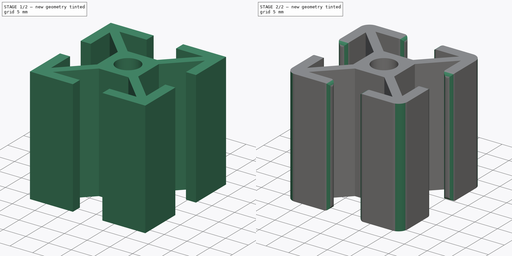
[diagram: build sequence overview — one tinted view per stage of 2, left to right]
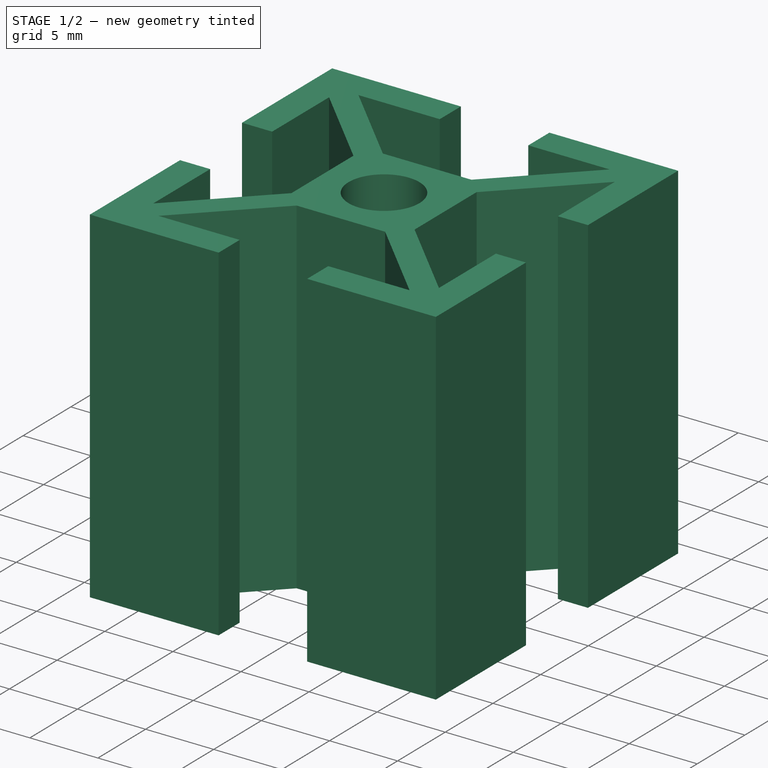
[diagram: stage 1 of 2 — iso view after this stage's code; geometry added in this stage tinted green]
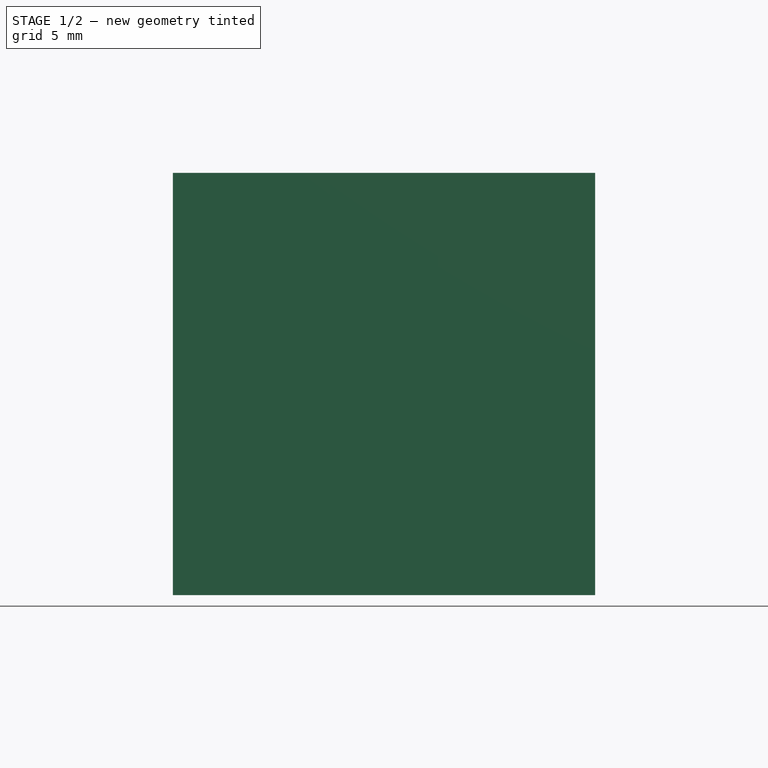
[diagram: stage 1 of 2 — front view after this stage's code; geometry added in this stage tinted green]
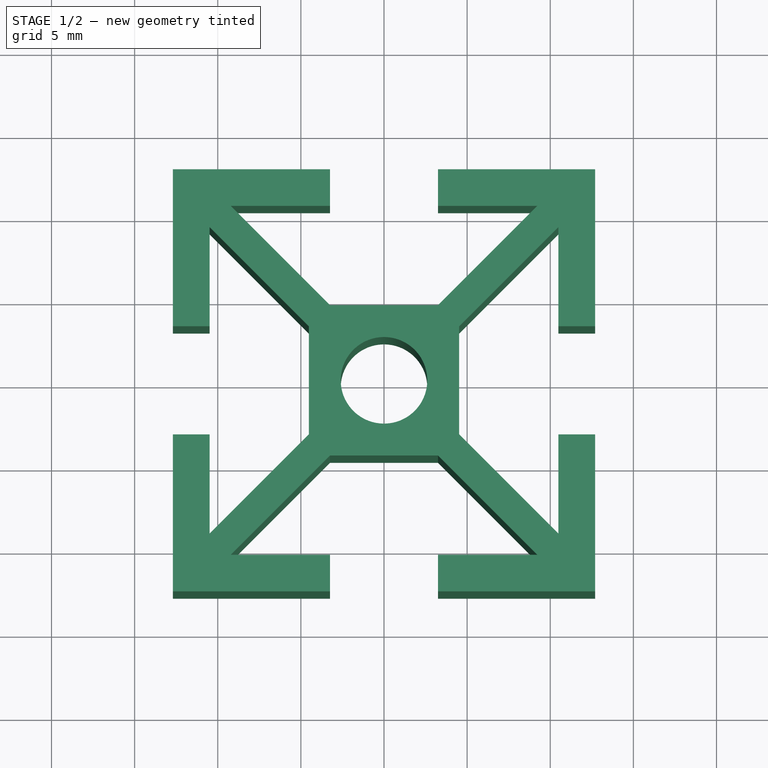
[diagram: stage 1 of 2 — top view after this stage's code; geometry added in this stage tinted green]
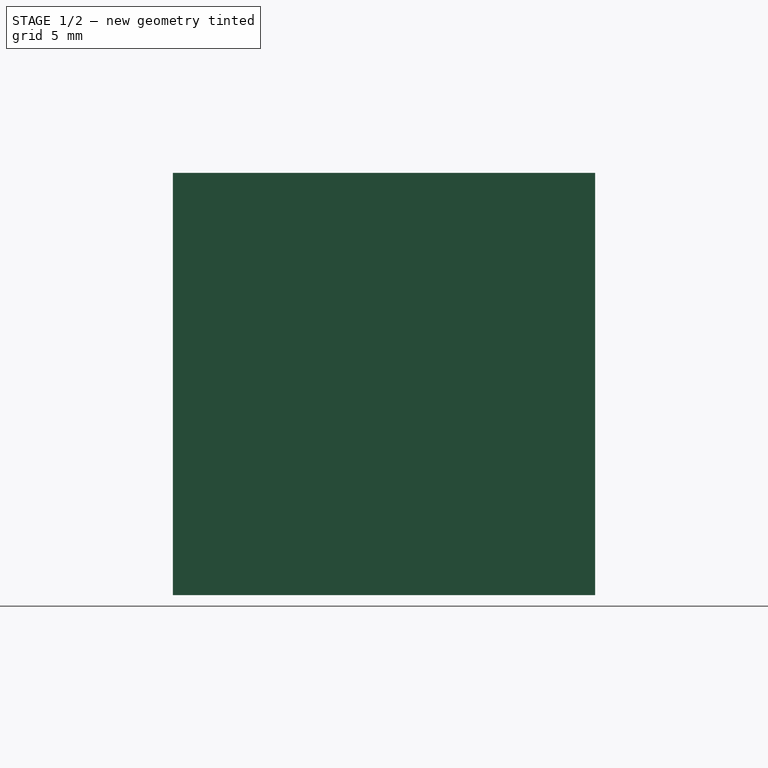
[diagram: stage 1 of 2 — right view after this stage's code; geometry added in this stage tinted green]
FCSTD DOCUMENT  (FreeCAD 2023.131R26244 +5365 (Git))
Label: 80-20
License: All rights reserved
LicenseURL: http://en.wikipedia.org/wiki/All_rights_reserved
objects: Sketcher::SketchObject×2, PartDesign::Fillet×2, Spreadsheet::Sheet×1, PartDesign::Pad×1, PartDesign::Pocket×1, PartDesign::Body×1
note: 17 computed .brp shape members not serialized (recipe doc carries the construction recipe); baked Part::Feature solids carry a one-line shape summary decoded from their .brp

FEATURE [Spreadsheet::Sheet] Spreadsheet  label="Parameters"
  PythonMode = false
  ShowCells = 0
  TreeRank = 1
  cells = A1=Units; B1=in; C1=in or cm; A2=Width; B2=1; A3=Height; B3=1; A4=Length; B4=1; A5=Through Hole Diameter; B5=0.205; A6=T-slot Wing Thickness; B6=0.08699999999999999; A7=T-slot Width; B7=0.256; A8=Inner Shaft Width; B8=0.356; A9=Inner Shaft Height; B9=0.356; A10=X-profile Shaft Thickness; B10=0.5; A12=Actual Width; B12(Width)==(B1 == <<cm>> ? 1 : 25.4) * B2; A13=Actual Height; B13(Height)==(B1 == <<cm>> ? 1 : 25.4) * B3; A14=Actual Length; B14(Length)==(B1 == <<cm>> ? 1 : 25.4) * B4; A15=Actual Through Hole Diameter; B15(Hole_Diameter)==(B1 == <<cm>> ? 1 : 25.4) * B5; A16=Actual T-slot Wing Thickness; B16(Wing_Thickness)==(B1 == <<cm>> ? 1 : 25.4) * B6; A17=Actual T-slot Width; B17(TSlot_Width)==(B1 == <<cm>> ? 1 : 25.4) * B7; A18=Actual Inner Shaft Width; B18(Inner_Width)==(B1 == <<cm>> ? 1 : 25.4) * B8; A19=Actual Inner Shaft Height; B19(Inner_Height)==(B1 == <<cm>> ? 1 : 25.4) * B9; A20=Actual X-profile Shaft Thickness; B20(XProfile_Shaft_Thickness)==(B1 == <<cm>> ? 1 : 25.4) * B10
FEATURE [Sketcher::SketchObject] Sketch  label="Rectangle Sketch"
  ArcFitTolerance = 1e-06
  AttachmentSupport = -> [XY_Plane]
  ExternalBSplineMaxDegree = 5
  ExternalBSplineTolerance = 0.0001
  FullyConstrained = true
  InternalTolerance = 1e-06
  InvalidShape = false
  MakeInternals = false
  MapMode = 5
  Support = -> [XY_Plane]
  TreeRank = 12
  ValidateShape = true
  expr: Constraints[10] = <<Parameters>>.Width
  expr: Constraints[11] = <<Parameters>>.Height
  expr: Constraints[12] = <<Parameters>>.Hole_Diameter
  sketch-geometry (6):
    g0: LineSegment StartX=12.7 StartY=-12.7 StartZ=0 EndX=12.7 EndY=12.7 EndZ=0
    g1: LineSegment StartX=12.7 StartY=12.7 StartZ=0 EndX=-12.7 EndY=12.7 EndZ=0
    g2: LineSegment StartX=-12.7 StartY=12.7 StartZ=0 EndX=-12.7 EndY=-12.7 EndZ=0
    g3: LineSegment StartX=-12.7 StartY=-12.7 StartZ=0 EndX=12.7 EndY=-12.7 EndZ=0
    g4: GeomPoint [constr] X=0 Y=0 Z=0
    g5: Circle CenterX=0 CenterY=0 CenterZ=0 NormalX=0 NormalY=0 NormalZ=1 AngleXU=0 Radius=2.6035
  constraints (14):
    c: Coincident(g0,g1)
    c: Coincident(g1,g2)
    c: Coincident(g2,g3)
    c: Coincident(g3,g0)
    c: Horizontal(g1)
    c: Horizontal(g3)
    c: Vertical(g0)
    c: Vertical(g2)
    c: Symmetric(g1,g0,g4)
    c: Coincident(g4,g-1)
    c: Distance(g1) = 25.4
    c: Distance(g0) = 25.4
    c: Diameter(g5) = 5.207
    c: Coincident(g5,g4)
FEATURE [PartDesign::Pad] Pad  label="Rectangle"
  AddSubType = 0
  AlongSketchNormal = false
  AutoTaperInnerAngle = true
  CheckUpToFaceLimits = true
  ClaimChildren = false
  Direction = (0,0,1)
  Fit = 0
  FitJoin = 0
  InnerFit = 0
  InnerFitJoin = 0
  InvalidShape = false
  Length = 25.4
  Length2 = 100
  Linearize = true
  NewSolid = false
  Profile = -> Sketch
  Suppress = false
  TaperInnerAngle = 0
  TaperInnerAngleRev = 0
  TreeRank = 13
  Type = 0
  ValidateShape = true
  _ProfileBasedVersion = 1
  expr: Length = <<Parameters>>.Height
FEATURE [Sketcher::SketchObject] Sketch001  label="T-Slots Sketch"
  ArcFitTolerance = 1e-06
  AttachmentSupport = -> [Pad]
  ExternalBSplineMaxDegree = 5
  ExternalBSplineTolerance = 0.0001
  FullyConstrained = true
  InternalTolerance = 1e-06
  InvalidShape = false
  MakeInternals = false
  MapMode = 5
  Placement = pos=(0,0,25.4) rot=(0,0,1;0rad)
  Support = -> [Pad]
  TreeRank = 14
  ValidateShape = true
  expr: Constraints[10] = <<Parameters>>.Width
  expr: Constraints[11] = <<Parameters>>.Height
  expr: Constraints[14] = <<Parameters>>.TSlot_Width
  expr: Constraints[20] = <<Parameters>>.Wing_Thickness
  expr: Constraints[31] = <<Parameters>>.Inner_Width
  expr: Constraints[32] = <<Parameters>>.Inner_Height
  expr: Constraints[35] = <<Parameters>>.TSlot_Width
  expr: Constraints[88] = <<Parameters>>.Wing_Thickness
  sketch-geometry (42):
    g0: LineSegment [constr] StartX=12.7 StartY=-12.7 StartZ=0 EndX=12.7 EndY=12.7 EndZ=0
    g1: LineSegment [constr] StartX=12.7 StartY=12.7 StartZ=0 EndX=-12.7 EndY=12.7 EndZ=0
    g2: LineSegment [constr] StartX=-12.7 StartY=12.7 StartZ=0 EndX=-12.7 EndY=-12.7 EndZ=0
    g3: LineSegment [constr] StartX=-12.7 StartY=-12.7 StartZ=0 EndX=12.7 EndY=-12.7 EndZ=0
    g4: GeomPoint [constr] X=0 Y=0 Z=0
    g5: LineSegment StartX=-3.2512 StartY=12.7 StartZ=0 EndX=3.2512 EndY=12.7 EndZ=0
    g6: LineSegment StartX=-3.2512 StartY=12.7 StartZ=0 EndX=-3.2512 EndY=10.4902 EndZ=0
    g7: LineSegment StartX=3.2512 StartY=12.7 StartZ=0 EndX=3.2512 EndY=10.4902 EndZ=0
    g8: LineSegment [constr] StartX=4.5212 StartY=-4.5212 StartZ=0 EndX=4.5212 EndY=4.5212 EndZ=0
    g9: LineSegment [constr] StartX=4.5212 StartY=4.5212 StartZ=0 EndX=-4.5212 EndY=4.5212 EndZ=0
    g10: LineSegment [constr] StartX=-4.5212 StartY=4.5212 StartZ=0 EndX=-4.5212 EndY=-4.5212 EndZ=0
    g11: LineSegment [constr] StartX=-4.5212 StartY=-4.5212 StartZ=0 EndX=4.5212 EndY=-4.5212 EndZ=0
    g12: GeomPoint [constr] X=0 Y=0 Z=0
    g13: LineSegment StartX=-3.2512 StartY=4.5212 StartZ=0 EndX=3.2512 EndY=4.5212 EndZ=0
    g14: LineSegment StartX=-3.2512 StartY=4.5212 StartZ=0 EndX=-9.2202 EndY=10.4902 EndZ=0
    g15: LineSegment StartX=-3.2512 StartY=10.4902 StartZ=0 EndX=-9.2202 EndY=10.4902 EndZ=0
    g16: LineSegment StartX=3.2512 StartY=4.5212 StartZ=0 EndX=9.2202 EndY=10.4902 EndZ=0
    g17: LineSegment StartX=3.2512 StartY=10.4902 StartZ=0 EndX=9.2202 EndY=10.4902 EndZ=0
    g18: LineSegment StartX=-4.5212 StartY=3.2512 StartZ=0 EndX=-4.5212 EndY=-3.2512 EndZ=0
    g19: LineSegment StartX=4.5212 StartY=3.2512 StartZ=0 EndX=4.5212 EndY=-3.2512 EndZ=0
    g20: LineSegment StartX=3.2512 StartY=-4.5212 StartZ=0 EndX=-3.2512 EndY=-4.5212 EndZ=0
    g21: LineSegment StartX=-3.2512 StartY=-12.7 StartZ=0 EndX=3.2512 EndY=-12.7 EndZ=0
    g22: LineSegment StartX=12.7 StartY=-3.2512 StartZ=0 EndX=12.7 EndY=3.2512 EndZ=0
    g23: LineSegment StartX=-12.7 StartY=3.2512 StartZ=0 EndX=-12.7 EndY=-3.2512 EndZ=0
    g24: LineSegment StartX=-4.5212 StartY=3.2512 StartZ=0 EndX=-10.4902 EndY=9.2202 EndZ=0
    g25: LineSegment StartX=4.5212 StartY=3.2512 StartZ=0 EndX=10.4902 EndY=9.2202 EndZ=0
    g26: LineSegment StartX=-4.5212 StartY=-3.2512 StartZ=0 EndX=-10.4902 EndY=-9.2202 EndZ=0
    g27: LineSegment StartX=-3.2512 StartY=-4.5212 StartZ=0 EndX=-9.2202 EndY=-10.4902 EndZ=0
    g28: LineSegment StartX=3.2512 StartY=-4.5212 StartZ=0 EndX=9.2202 EndY=-10.4902 EndZ=0
    g29: LineSegment StartX=4.5212 StartY=-3.2512 StartZ=0 EndX=10.4902 EndY=-9.2202 EndZ=0
    g30: LineSegment StartX=-3.2512 StartY=-12.7 StartZ=0 EndX=-3.2512 EndY=-10.4902 EndZ=0
    g31: LineSegment StartX=3.2512 StartY=-12.7 StartZ=0 EndX=3.2512 EndY=-10.4902 EndZ=0
    g32: LineSegment StartX=12.7 StartY=-3.2512 StartZ=0 EndX=10.4902 EndY=-3.2512 EndZ=0
    g33: LineSegment StartX=12.7 StartY=3.2512 StartZ=0 EndX=10.4902 EndY=3.2512 EndZ=0
    g34: LineSegment StartX=-12.7 StartY=3.2512 StartZ=0 EndX=-10.4902 EndY=3.2512 EndZ=0
    g35: LineSegment StartX=-12.7 StartY=-3.2512 StartZ=0 EndX=-10.4902 EndY=-3.2512 EndZ=0
    g36: LineSegment StartX=-10.4902 StartY=3.2512 StartZ=0 EndX=-10.4902 EndY=9.2202 EndZ=0
    g37: LineSegment StartX=-10.4902 StartY=-3.2512 StartZ=0 EndX=-10.4902 EndY=-9.2202 EndZ=0
    g38: LineSegment StartX=-3.2512 StartY=-10.4902 StartZ=0 EndX=-9.2202 EndY=-10.4902 EndZ=0
    g39: LineSegment StartX=3.2512 StartY=-10.4902 StartZ=0 EndX=9.2202 EndY=-10.4902 EndZ=0
    g40: LineSegment StartX=10.4902 StartY=-3.2512 StartZ=0 EndX=10.4902 EndY=-9.2202 EndZ=0
    g41: LineSegment StartX=10.4902 StartY=3.2512 StartZ=0 EndX=10.4902 EndY=9.2202 EndZ=0
  constraints (112):
    c: Coincident(g0,g1)
    c: Coincident(g1,g2)
    c: Coincident(g2,g3)
    c: Coincident(g3,g0)
    c: Horizontal(g1)
    c: Horizontal(g3)
    c: Vertical(g0)
    c: Vertical(g2)
    c: Symmetric(g1,g0,g4)
    c: Coincident(g4,g-1)
    c: Distance(g1) = 25.4
    c: Distance(g0) = 25.4
    c: PointOnObject(g5,g1)
    c: Symmetric(g5,g5,g-2)
    c: Distance(g5,g5) = 6.5024
    c: Coincident(g6,g5)
    c: Vertical(g6)
    c: Coincident(g7,g5)
    c: Vertical(g7)
    c: Equal(g6,g7)
    c: Distance(g6) = 2.2098
    c: Coincident(g8,g9)
    c: Coincident(g9,g10)
    c: Coincident(g10,g11)
    c: Coincident(g11,g8)
    c: Horizontal(g9)
    c: Horizontal(g11)
    c: Vertical(g8)
    c: Vertical(g10)
    c: Symmetric(g9,g8,g12)
    c: Coincident(g12,g4)
    c: Distance(g9) = 9.0424
    c: Distance(g8) = 9.0424
    c: PointOnObject(g13,g9)
    c: Symmetric(g13,g13,g-2)
    c: Distance(g13) = 6.5024
    c: Coincident(g14,g13)
    c: Angle(g9,g14) = 2.35619
    c: Coincident(g15,g6)
    c: Horizontal(g15)
    c: Coincident(g14,g15)
    c: Coincident(g16,g13)
    c: Angle(g16,g9) = 2.35619
    c: Coincident(g17,g7)
    c: Horizontal(g17)
    c: Coincident(g16,g17)
    c: PointOnObject(g18,g10)
    c: PointOnObject(g19,g8)
    c: PointOnObject(g20,g11)
    c: PointOnObject(g21,g3)
    c: PointOnObject(g22,g0)
    c: PointOnObject(g23,g2)
    c: Equal(g13,g20)
    c: Equal(g13,g19)
    c: Equal(g13,g18)
    c: Symmetric(g18,g18,g-1)
    c: Symmetric(g19,g19,g-1)
    c: Symmetric(g20,g20,g-2)
    c: Equal(g5,g22)
    c: Equal(g5,g21)
    c: Equal(g5,g23)
    c: Symmetric(g23,g23,g-1)
    c: Symmetric(g22,g22,g-1)
    c: Symmetric(g21,g21,g-2)
    c: Coincident(g24,g18)
    c: Parallel(g14,g24)
    c: Coincident(g25,g19)
    c: Parallel(g16,g25)
    c: Coincident(g26,g18)
    c: Coincident(g27,g20)
    c: Parallel(g26,g27)
    c: Parallel(g26,g16)
    c: Coincident(g28,g20)
    c: Coincident(g29,g19)
    c: Parallel(g29,g28)
    c: Parallel(g14,g29)
    c: Coincident(g30,g21)
    c: Vertical(g30)
    c: Coincident(g31,g21)
    c: Vertical(g31)
    c: Coincident(g32,g22)
    c: Horizontal(g32)
    c: Coincident(g33,g22)
    c: Horizontal(g33)
    c: Coincident(g34,g23)
    c: Horizontal(g34)
    c: Coincident(g35,g23)
    c: Horizontal(g35)
    c: Distance(g33) = 2.2098
    c: Equal(g33,g32)
    c: Equal(g33,g34)
    c: Equal(g33,g35)
    c: Coincident(g36,g34)
    c: Vertical(g36)
    c: Coincident(g37,g35)
    c: Vertical(g37)
    c: Coincident(g38,g30)
    c: Horizontal(g38)
    c: Coincident(g39,g31)
    c: Horizontal(g39)
    c: Coincident(g40,g32)
    c: Vertical(g40)
    c: Coincident(g41,g33)
    c: Vertical(g41)
    c: Coincident(g24,g36)
    c: Coincident(g25,g41)
    c: Coincident(g29,g40)
    c: Coincident(g28,g39)
    c: Coincident(g26,g37)
    c: Coincident(g27,g38)
    c: Equal(g30,g31)
    c: Equal(g30,g6)
FEATURE [PartDesign::Pocket] Pocket  label="T-Slots"
  AddSubType = 1
  AutoTaperInnerAngle = true
  BaseFeature = -> Pad
  CheckUpToFaceLimits = true
  ClaimChildren = false
  Fit = 0
  FitJoin = 0
  InnerFit = 0
  InnerFitJoin = 0
  InvalidShape = false
  Length = 5
  Length2 = 100
  Linearize = true
  NewSolid = false
  Profile = -> Sketch001
  Suppress = false
  TaperInnerAngle = 0
  TaperInnerAngleRev = 0
  TreeRank = 15
  Type = 1
  ValidateShape = true
  _ProfileBasedVersion = 1
  _Version = 1
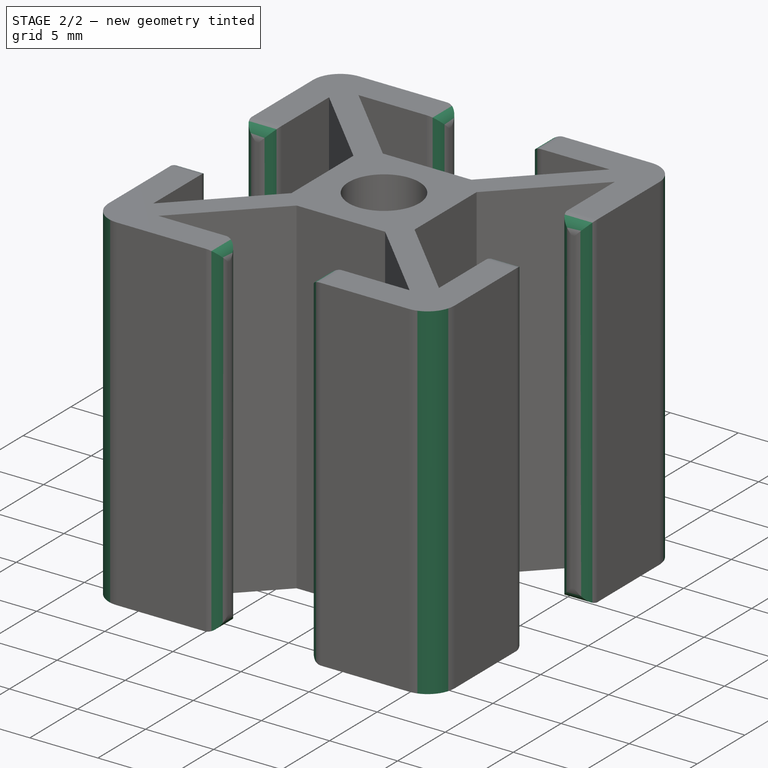
[diagram: stage 2 of 2 — iso view after this stage's code; geometry added in this stage tinted green]
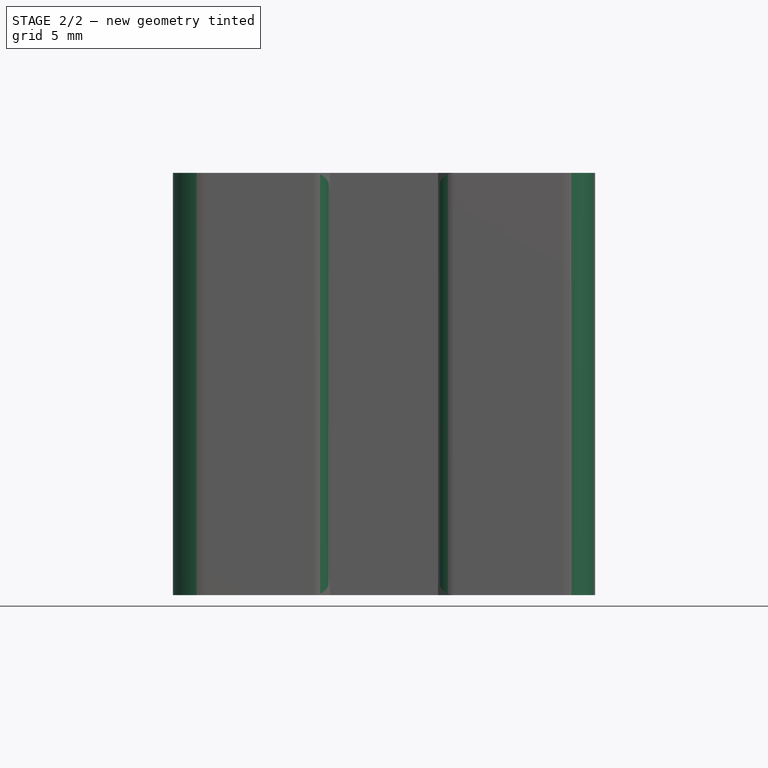
[diagram: stage 2 of 2 — front view after this stage's code; geometry added in this stage tinted green]
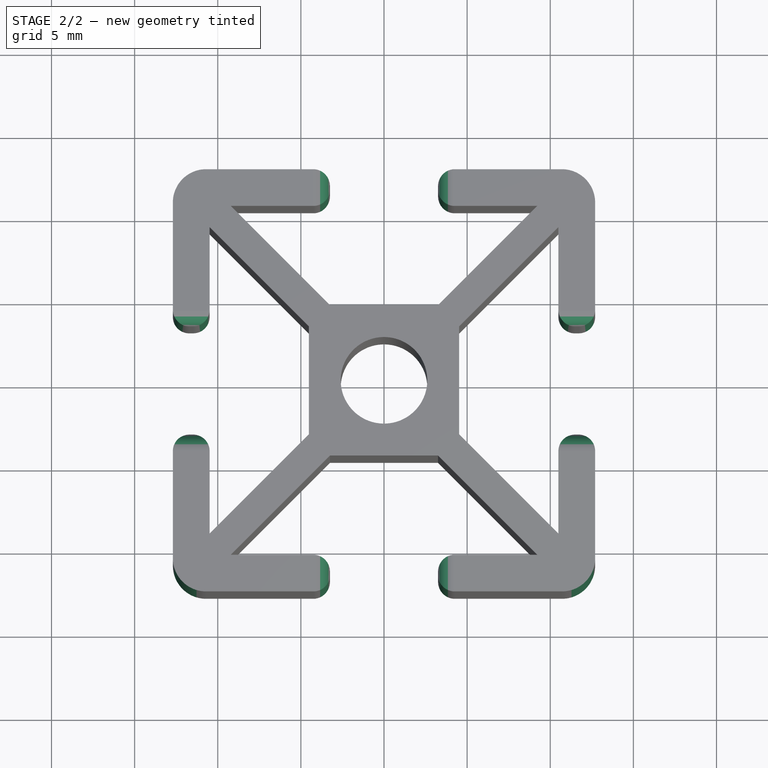
[diagram: stage 2 of 2 — top view after this stage's code; geometry added in this stage tinted green]
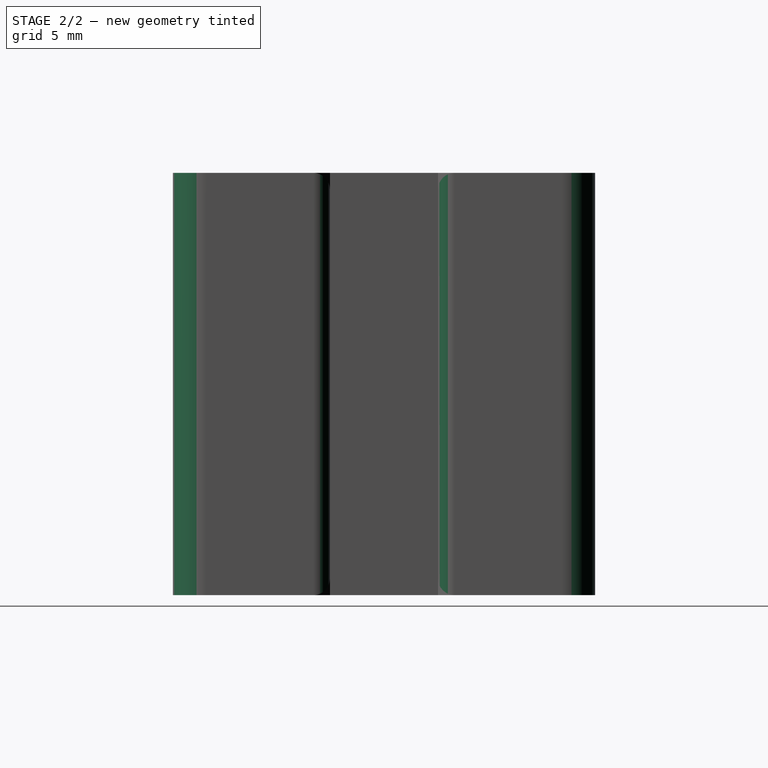
[diagram: stage 2 of 2 — right view after this stage's code; geometry added in this stage tinted green]
FEATURE [PartDesign::Fillet] Fillet  label="Wing Tip Fillet"
  AddSubType = 0
  Base = -> Pocket [Face21,Face33,Face3,Face15,Face24,Face30,Face12,Face6]
  BaseFeature = -> Pocket
  InvalidShape = false
  NewSolid = false
  Radius = 1.0049
  SupportTransform = false
  Suppress = false
  TreeRank = 16
  ValidateShape = true
  expr: Radius = <<Parameters>>.Wing_Thickness / 2 - 0.1
FEATURE [PartDesign::Fillet] Fillet001  label="Corner Fillet"
  AddSubType = 0
  Base = -> Fillet [Edge3,Edge108,Edge102,Edge132]
  BaseFeature = -> Fillet
  InvalidShape = false
  NewSolid = false
  Radius = 2
  SupportTransform = false
  Suppress = false
  TreeRank = 17
  ValidateShape = true
FEATURE [PartDesign::Body] Body  label="T-Slot Profile"
  AutoGroupSolids = false
  ClaimAllChildren = false
  ExportMode = 0
  Group = -> [Sketch,Pad,Sketch001,Pocket,Fillet,Fillet001]
  InvalidShape = false
  Origin = -> Origin
  Tip = -> Fillet001
  TreeRank = 11
  ValidateShape = true
  _ExportChildren = -> [Pad,Pocket,Fillet,Fillet001]
  _GroupVersion = 1
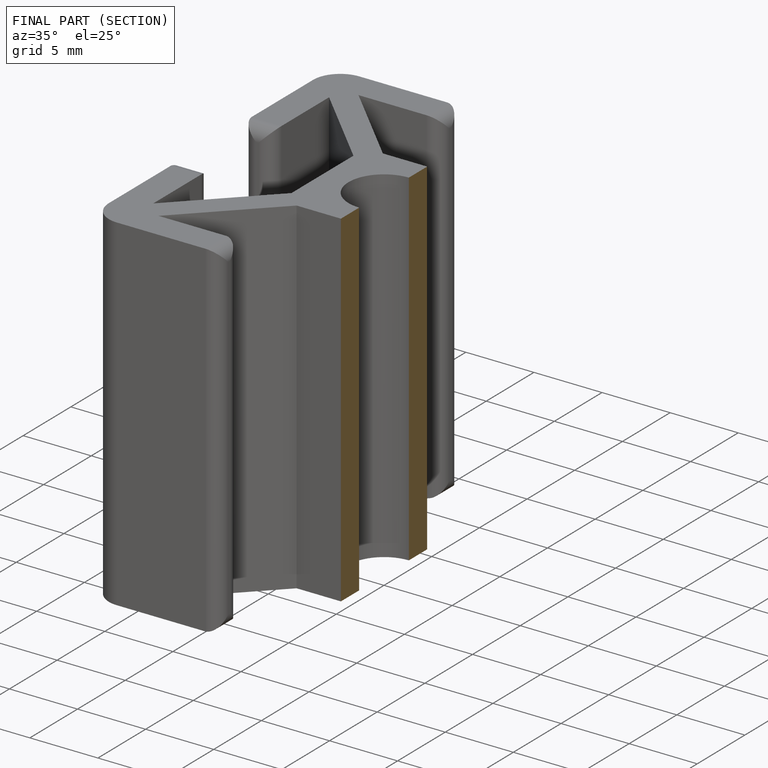
[diagram: finished part — half-section view (interior)]
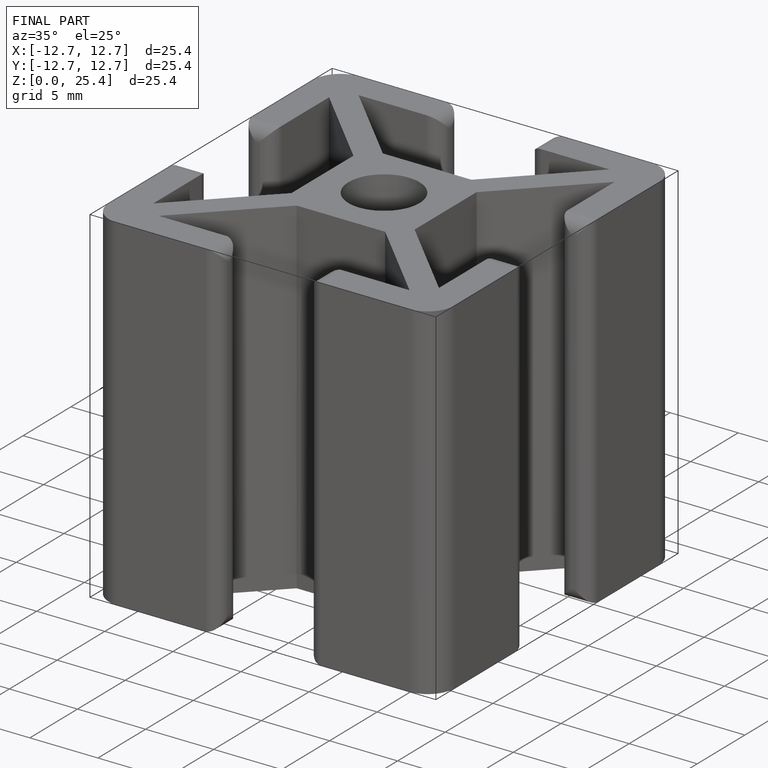
[diagram: finished part — iso view with bounding-box wireframe]
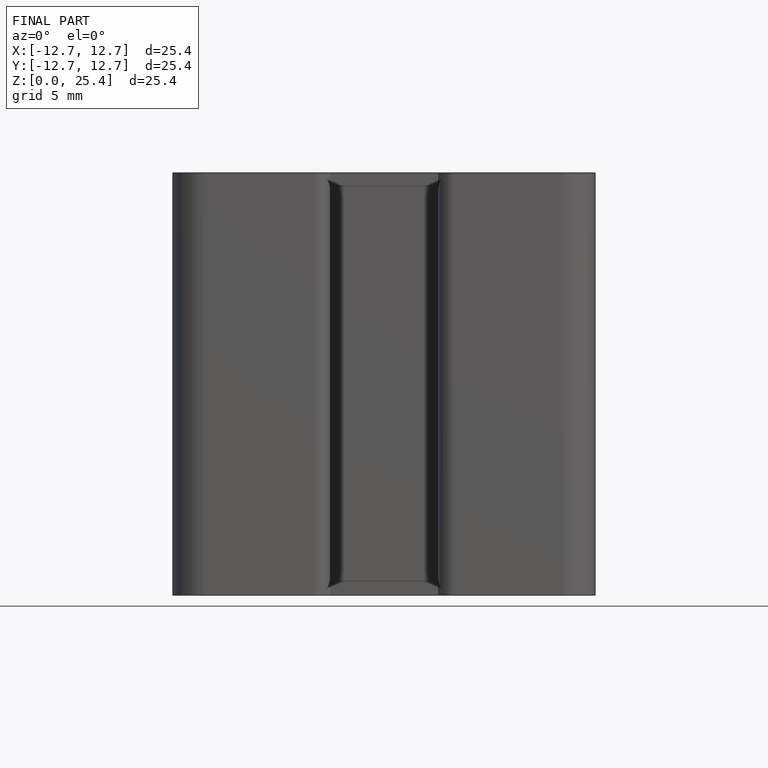
[diagram: finished part — front view with bounding-box wireframe]
